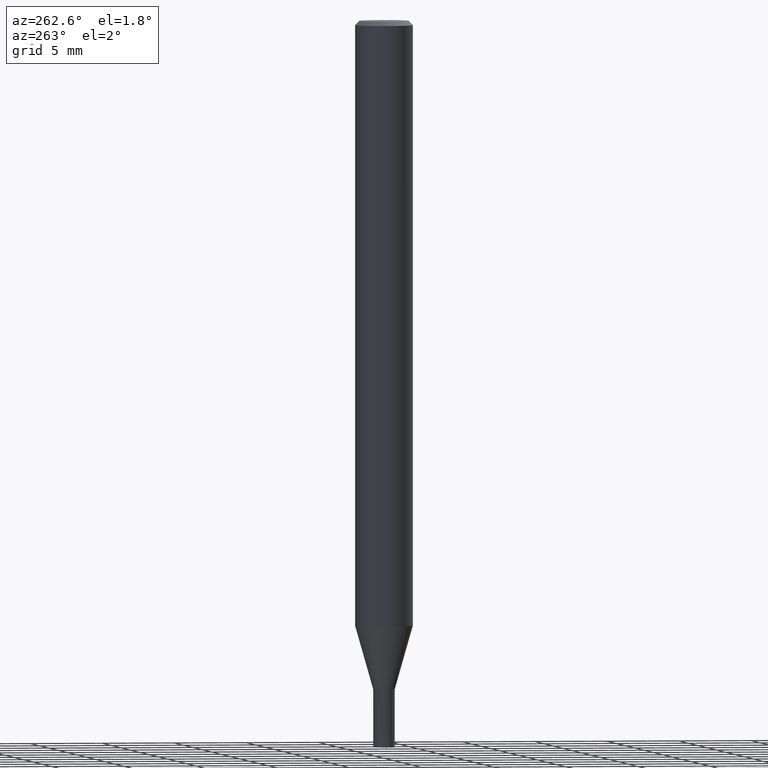
[diagram: clean part render]
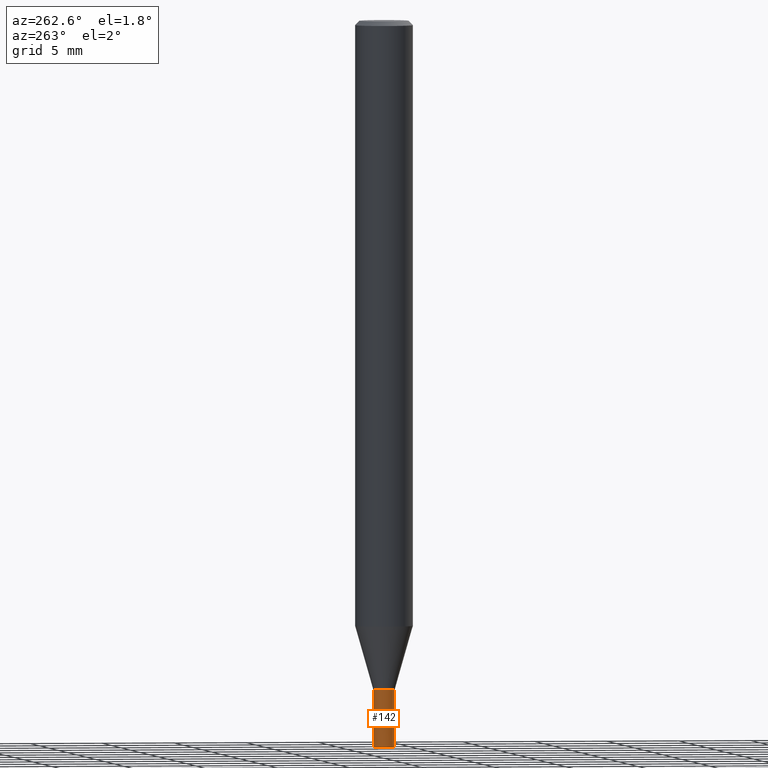
[diagram: same view with one face highlighted and labeled with its STEP entity id]
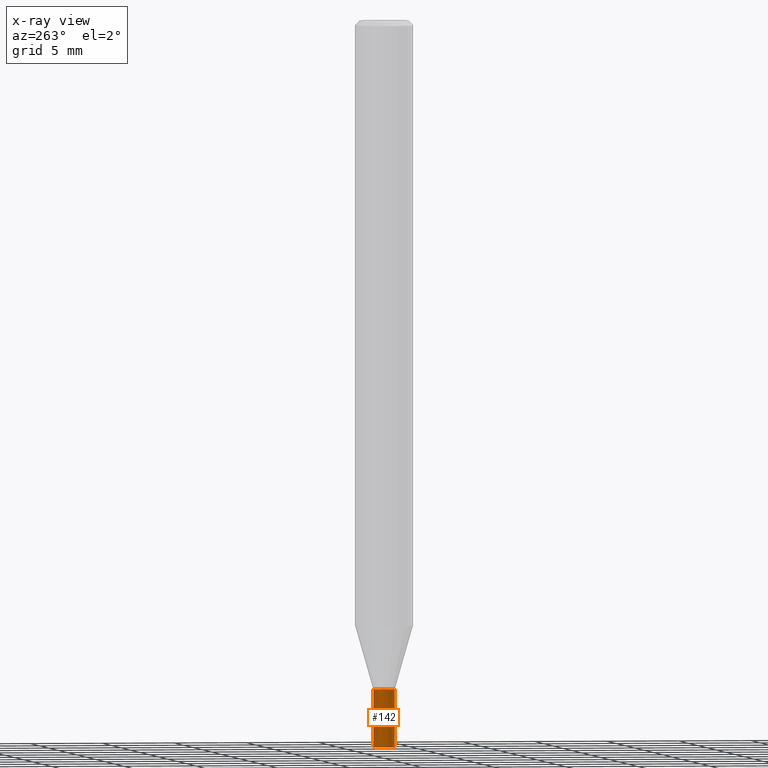
[diagram: x-ray of the same camera — body ghosted, the highlighted face saturated]
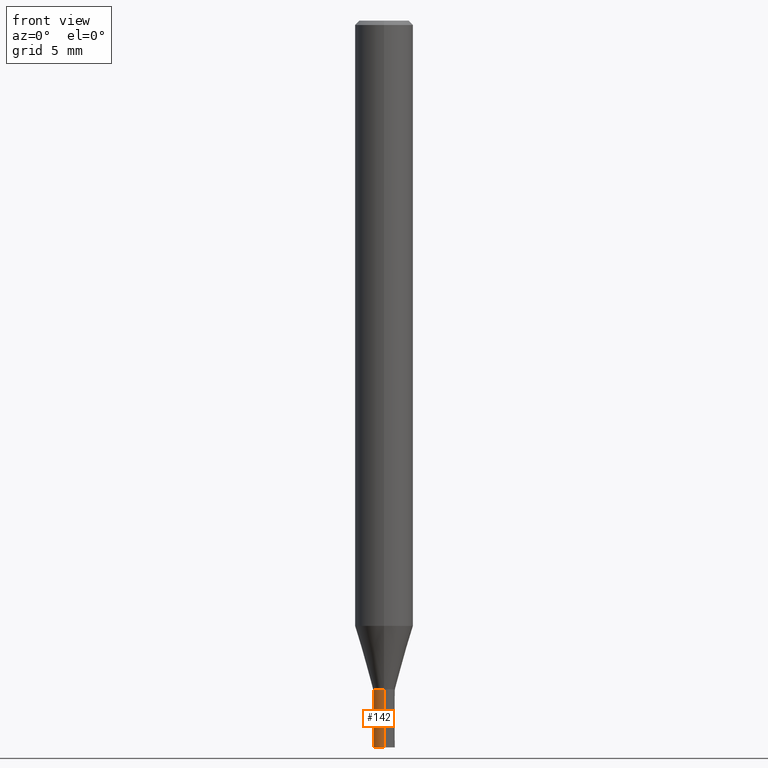
[diagram: same view with one face highlighted and labeled with its STEP entity id]
A machine part, auxiliary view. The second image highlights one B-rep face of the part: STEP entity #142.
The next image is the same camera in x-ray: the body ghosted, the highlighted face saturated — about 0% of this face is hidden behind the body in this view.
A second angle (front view) of the same face is appended — the face is thin or edge-on in the first view.
In plain terms, the highlighted conical surface has half-angle 0.001 deg.
Its self-contained STEP definition (entity closure, byte-faithful):
#120=VERTEX_POINT('',#247);
#124=VERTEX_POINT('',#251);
#126=EDGE_CURVE('',#170,#124,#253,.T.);
#142=ADVANCED_FACE('',(#270),#271,.T.);
#144=VERTEX_POINT('',#273);
#158=EDGE_CURVE('',#144,#120,#289,.T.);
#160=EDGE_CURVE('',#124,#144,#291,.T.);
#162=EDGE_CURVE('',#170,#120,#293,.T.);
#170=VERTEX_POINT('',#302);
#247=CARTESIAN_POINT('',(0.0,0.75,-50.0));
#251=CARTESIAN_POINT('',(9.18332304731401E-017,-0.7499,-46.0));
#253=LINE('',#389,#390);
#270=FACE_OUTER_BOUND('',#411,.T.);
#271=CONICAL_SURFACE('',#412,0.74995,2.49999999947889E-005);
#273=CARTESIAN_POINT('',(0.0,0.7499,-46.0));
#289=LINE('',#437,#438);
#291=CIRCLE('',#441,0.7499);
#293=CIRCLE('',#444,0.75);
#302=CARTESIAN_POINT('',(9.18454765366783E-017,-0.75,-50.0));
#389=CARTESIAN_POINT('',(9.18393535049092E-017,-0.74995,-48.0));
#390=VECTOR('',#534,1.0);
#411=EDGE_LOOP('',(#553,#554,#555,#556));
#412=AXIS2_PLACEMENT_3D('',#557,#558,#559);
#437=CARTESIAN_POINT('',(-9.18393535049092E-017,0.74995,-48.0));
#438=VECTOR('',#577,1.0);
#441=AXIS2_PLACEMENT_3D('',#578,#579,#580);
#444=AXIS2_PLACEMENT_3D('',#581,#582,#583);
#534=DIRECTION('',(-3.06151588359888E-021,2.49999999921847E-005,0.9999999996875));
#553=ORIENTED_EDGE('',*,*,#158,.T.);
#554=ORIENTED_EDGE('',*,*,#162,.F.);
#555=ORIENTED_EDGE('',*,*,#126,.T.);
#556=ORIENTED_EDGE('',*,*,#160,.T.);
#557=CARTESIAN_POINT('',(0.0,0.0,-48.0));
#558=DIRECTION('',(0.0,-0.0,-1.0));
#559=DIRECTION('',(0.0,1.0,0.0));
#577=DIRECTION('',(-3.06151588359888E-021,2.49999999921847E-005,-0.9999999996875));
#578=CARTESIAN_POINT('',(0.0,0.0,-46.0));
#579=DIRECTION('',(0.0,0.0,-1.0));
#580=DIRECTION('',(0.0,1.0,0.0));
#581=CARTESIAN_POINT('',(0.0,0.0,-50.0));
#582=DIRECTION('',(0.0,0.0,-1.0));
#583=DIRECTION('',(0.0,1.0,0.0));